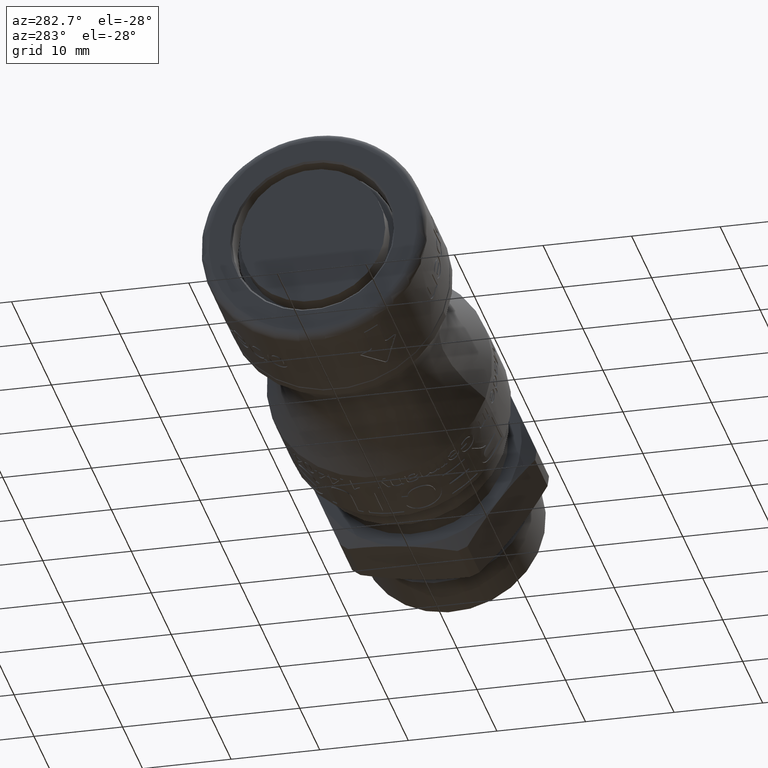
[diagram: clean part render]
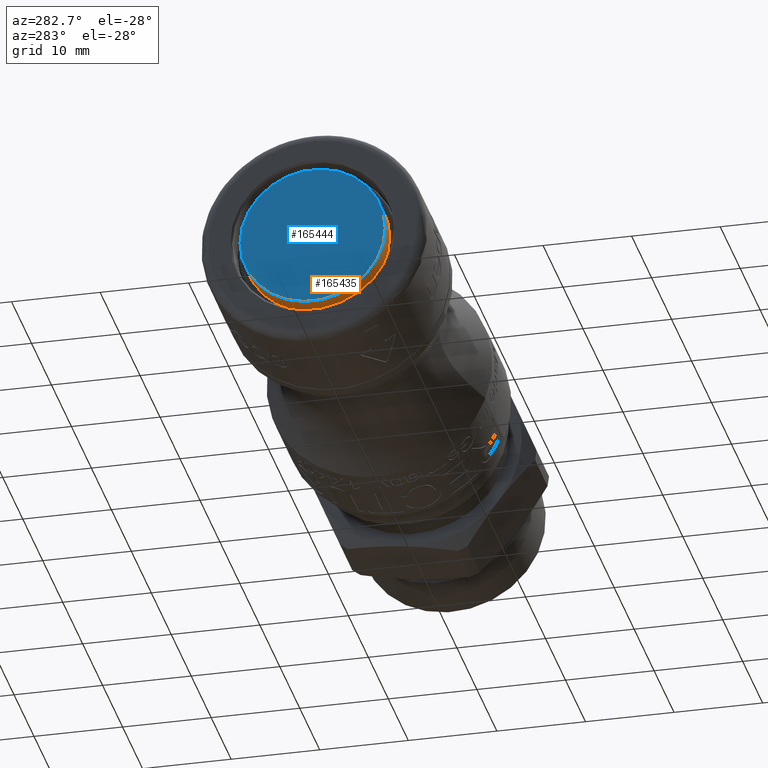
[diagram: same view with the hole feature highlighted: cylindrical wall and planar end face, labeled with their STEP entity ids]
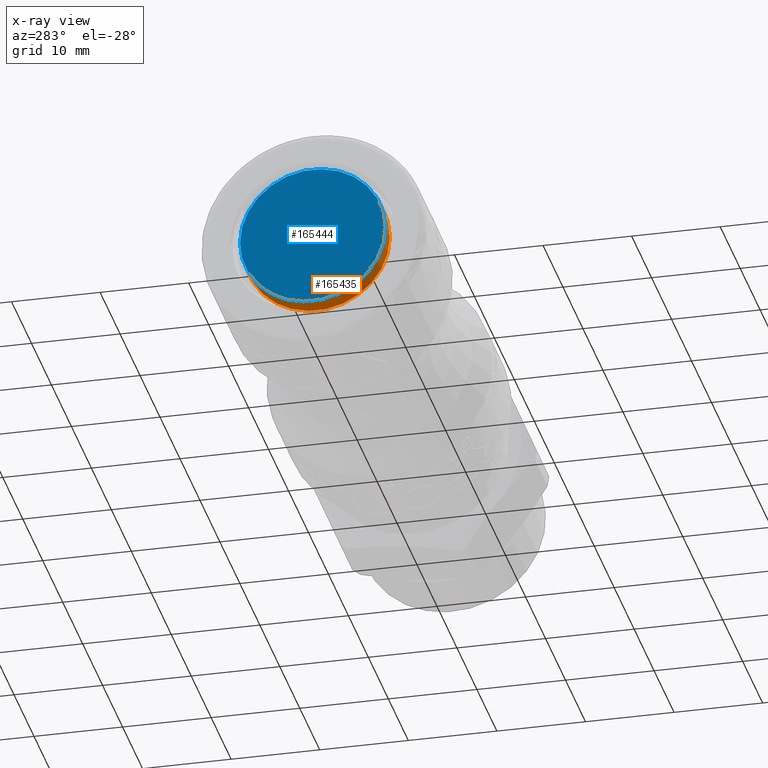
[diagram: x-ray of the same camera — body ghosted, the hole faces saturated]
A machine part, auxiliary view. The highlighted faces form one hole feature of diameter 16.3926 mm: the cylindrical wall (entity #165435, orange) and its adjacent planar end face (entity #165444, blue) — they share a circular edge in the B-rep.
The next image is the same camera in x-ray (body ghosted, the hole faces saturated) — the bore reads through the body.
Wall:
#165408=CARTESIAN_POINT('',(33.450000000000003,8.318250E-015,0.0));
#165409=DIRECTION('',(1.0,2.486771E-016,0.0));
#165410=DIRECTION('',(0.0,1.0,0.0));
#165411=AXIS2_PLACEMENT_3D('',#165408,#165409,#165410);
#165412=CYLINDRICAL_SURFACE('',#165411,8.196301997924348);
#165413=CARTESIAN_POINT('',(-2.300000000000002,8.196301997924351,0.0));
#165414=VERTEX_POINT('',#165413);
#165415=CARTESIAN_POINT('',(-2.300000000000004,-5.719574E-016,0.0));
#165416=DIRECTION('',(1.0,0.0,0.0));
#165417=DIRECTION('',(0.0,1.0,0.0));
#165418=AXIS2_PLACEMENT_3D('',#165415,#165416,#165417);
#165419=CIRCLE('',#165418,8.196301997924353);
#165420=EDGE_CURVE('',#165414,#165414,#165419,.T.);
#165421=ORIENTED_EDGE('',*,*,#165420,.T.);
#165422=EDGE_LOOP('',(#165421));
#165423=FACE_OUTER_BOUND('',#165422,.T.);
#165424=CARTESIAN_POINT('',(0.0,-8.196301997924348,-1.003758E-015));
#165425=VERTEX_POINT('',#165424);
#165426=CARTESIAN_POINT('',(0.0,9.860761E-031,0.0));
#165427=DIRECTION('',(1.0,0.0,0.0));
#165428=DIRECTION('',(0.0,1.0,0.0));
#165429=AXIS2_PLACEMENT_3D('',#165426,#165427,#165428);
#165430=CIRCLE('',#165429,8.196301997924348);
#165431=EDGE_CURVE('',#165425,#165425,#165430,.T.);
#165432=ORIENTED_EDGE('',*,*,#165431,.F.);
#165433=EDGE_LOOP('',(#165432));
#165434=FACE_BOUND('',#165433,.T.);
#165435=ADVANCED_FACE('',(#165423,#165434),#165412,.T.);
End face:
#165413=CARTESIAN_POINT('',(-2.300000000000002,8.196301997924351,0.0));
#165414=VERTEX_POINT('',#165413);
#165415=CARTESIAN_POINT('',(-2.300000000000004,-5.719574E-016,0.0));
#165416=DIRECTION('',(1.0,0.0,0.0));
#165417=DIRECTION('',(0.0,1.0,0.0));
#165418=AXIS2_PLACEMENT_3D('',#165415,#165416,#165417);
#165419=CIRCLE('',#165418,8.196301997924353);
#165420=EDGE_CURVE('',#165414,#165414,#165419,.T.);
#165436=CARTESIAN_POINT('',(-2.300000000000001,4.098150998962175,0.0));
#165437=DIRECTION('',(-1.0,0.0,0.0));
#165438=DIRECTION('',(0.0,0.0,1.0));
#165439=AXIS2_PLACEMENT_3D('',#165436,#165437,#165438);
#165440=PLANE('',#165439);
#165441=ORIENTED_EDGE('',*,*,#165420,.F.);
#165442=EDGE_LOOP('',(#165441));
#165443=FACE_OUTER_BOUND('',#165442,.T.);
#165444=ADVANCED_FACE('',(#165443),#165440,.T.);